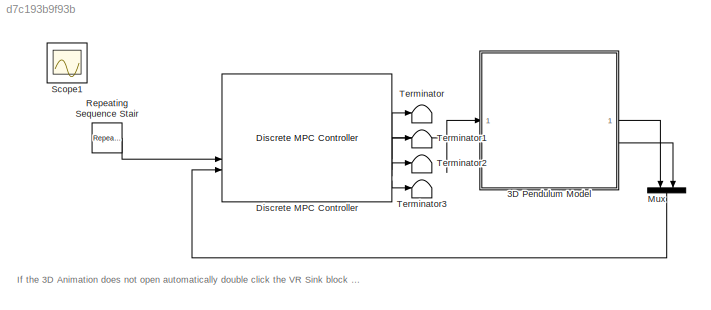
MODEL mdl_d7c193b9f93b
KIND model
CONFIG AbsTol = auto
CONFIG EnableMultiTasking = on
CONFIG FixedStep = auto
CONFIG InitFcn = InvPend_Setup
CONFIG MaxStep = auto
CONFIG MinStep = auto
CONFIG RelTol = 1e-3
CONFIG SampleTimeConstraint = Unconstrained
CONFIG SolverName = ode45
CONFIG StartTime = 0.0
CONFIG StopTime = inf
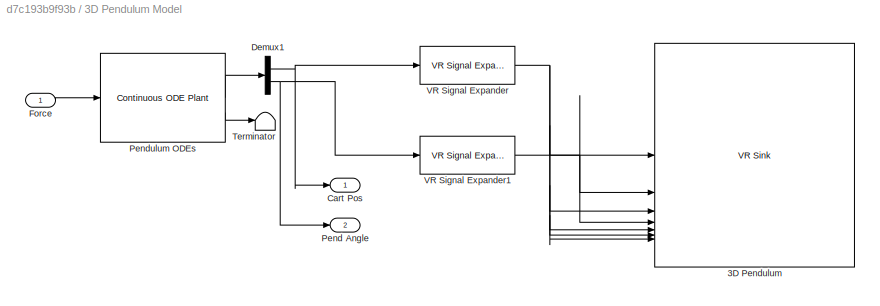
BLOCK [SubSystem] 3D Pendulum Model
BLOCK [Reference] 3D Pendulum Model/3D Pendulum  REF=vrlib/VR Sink
  InstantiateOnLoad = on
  SourceBlock = vrlib/VR Sink
  SourceType = Virtual Reality Sink
BLOCK [Outport] 3D Pendulum Model/Cart Pos
BLOCK [Demux] 3D Pendulum Model/Demux1
  Outputs = 2
BLOCK [Inport] 3D Pendulum Model/Force
BLOCK [Outport] 3D Pendulum Model/Pend Angle
  Port = 2
BLOCK [Reference] 3D Pendulum Model/Pendulum ODEs  REF=jMPClib/MPC Blocks/Continuous ODE Plant
  SourceBlock = jMPClib/MPC Blocks/Continuous ODE Plant
  SourceProductName = JMPC Toolbox
  SourceType = Continuous ODE Model
BLOCK [Terminator] 3D Pendulum Model/Terminator
BLOCK [Reference] 3D Pendulum Model/VR Signal Expander  REF=vrlib/VR Signal Expander
  SourceBlock = vrlib/VR Signal Expander
  SourceType = VR Signal Expander
BLOCK [Reference] 3D Pendulum Model/VR Signal Expander1  REF=vrlib/VR Signal Expander
  SourceBlock = vrlib/VR Signal Expander
  SourceType = VR Signal Expander
BLOCK [Reference] Discrete MPC Controller  REF=jMPClib/MPC Blocks/Discrete MPC Controller
  SourceBlock = jMPClib/MPC Blocks/Discrete MPC Controller
  SourceProductName = JMPC Toolbox
  SourceType = Model Predictive Controller
BLOCK [Mux] Mux
  DisplayOption = bar
  Inputs = 2
  NameLocation = right
BLOCK [Reference] Repeating Sequence Stair  REF=simulink/Sources/Repeating
Sequence
Stair
  SourceBlock = simulink/Sources/Repeating\nSequence\nStair
  SourceType = Repeating Sequence Stair
BLOCK [Scope] Scope1
  Floating = off
  IOType = viewer
  NumInputPorts = 1
  ScopeSpecificationString = C++SS(StrPVP('Location','[188, 366, 510, 604]'),StrPVP('Open','off'),MxPVP('AxesTitles',54,'struct(''axes1'',''%<SignalLabel>'')'),StrPVP('ShowDataMarkers','off'),StrPVP('ShowLegends','off'),StrPVP('DataFormat','Array'),StrPVP('MaxDataPoints','7500'),StrPVP('LimitDataPoints','on'),StrPVP('Decimation','1'),StrPVP('BlockParamSampleInput','off'))
BLOCK [Terminator] Terminator
BLOCK [Terminator] Terminator1
BLOCK [Terminator] Terminator2
BLOCK [Terminator] Terminator3
ANNOTATION (root): If the 3D Animation does not open automatically double click the VR Sink block inside the Pendulum Block
NET 3D Pendulum Model/Demux1:1 -> 3D Pendulum Model/Cart Pos:1, 3D Pendulum Model/VR Signal Expander:1
NET 3D Pendulum Model/Demux1:2 -> 3D Pendulum Model/Pend Angle:1, 3D Pendulum Model/VR Signal Expander1:1
LINE 3D Pendulum Model/Force:1 -> 3D Pendulum Model/Pendulum ODEs:1
LINE 3D Pendulum Model/Pendulum ODEs:1 -> 3D Pendulum Model/Demux1:1
LINE 3D Pendulum Model/Pendulum ODEs:2 -> 3D Pendulum Model/Terminator:1
NET 3D Pendulum Model/VR Signal Expander1:1 -> 3D Pendulum Model/3D Pendulum:2, 3D Pendulum Model/3D Pendulum:4
NET 3D Pendulum Model/VR Signal Expander:1 -> 3D Pendulum Model/3D Pendulum:1, 3D Pendulum Model/3D Pendulum:3, 3D Pendulum Model/3D Pendulum:5, 3D Pendulum Model/3D Pendulum:6, 3D Pendulum Model/3D Pendulum:7
LINE 3D Pendulum Model:1 -> Mux:1
LINE 3D Pendulum Model:2 -> Mux:2
LINE Discrete MPC Controller:1 -> 3D Pendulum Model:1
LINE Discrete MPC Controller:2 -> Terminator:1
LINE Discrete MPC Controller:3 -> Terminator1:1
LINE Discrete MPC Controller:4 -> Terminator2:1
LINE Discrete MPC Controller:5 -> Terminator3:1
LINE Mux:1 -> Discrete MPC Controller:3
LINE Repeating Sequence Stair:1 -> Discrete MPC Controller:2
note: NET lines group one-source signal fan-out (src -> all destinations, sorted); 1:1 wires keep LINE
